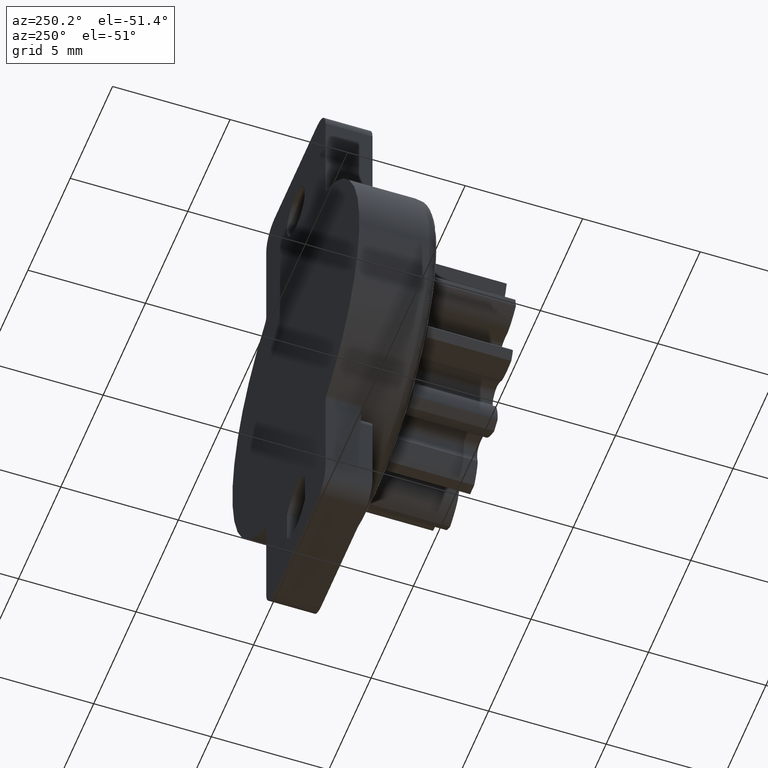
[diagram: clean part render]
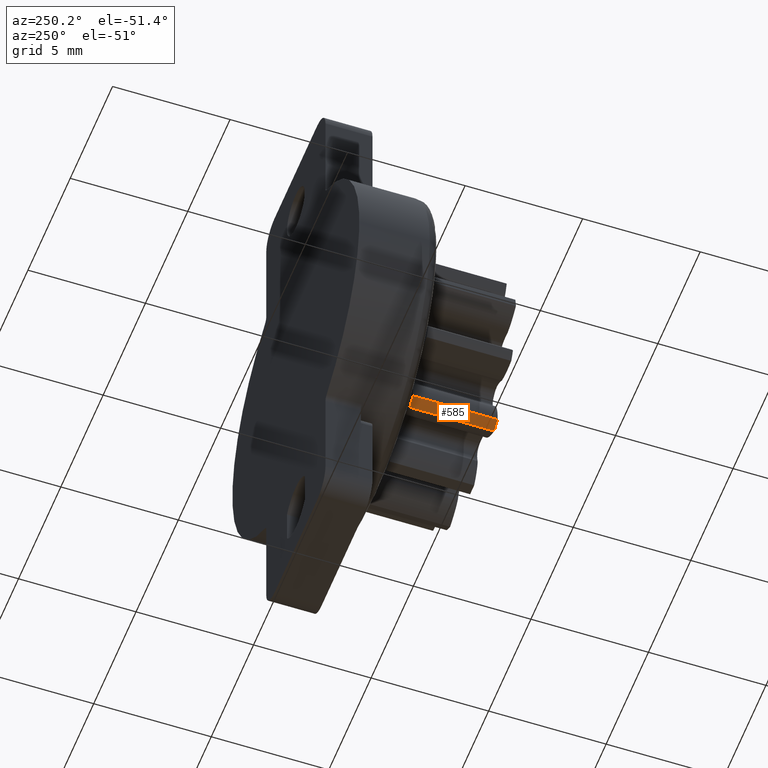
[diagram: same view with one face highlighted and labeled with its STEP entity id]
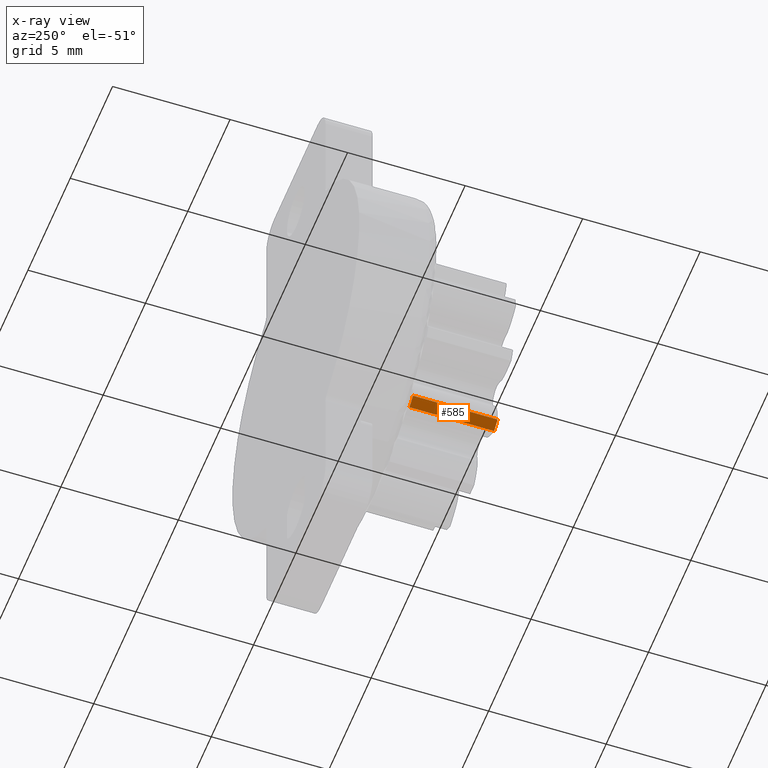
[diagram: x-ray of the same camera — body ghosted, the highlighted face saturated]
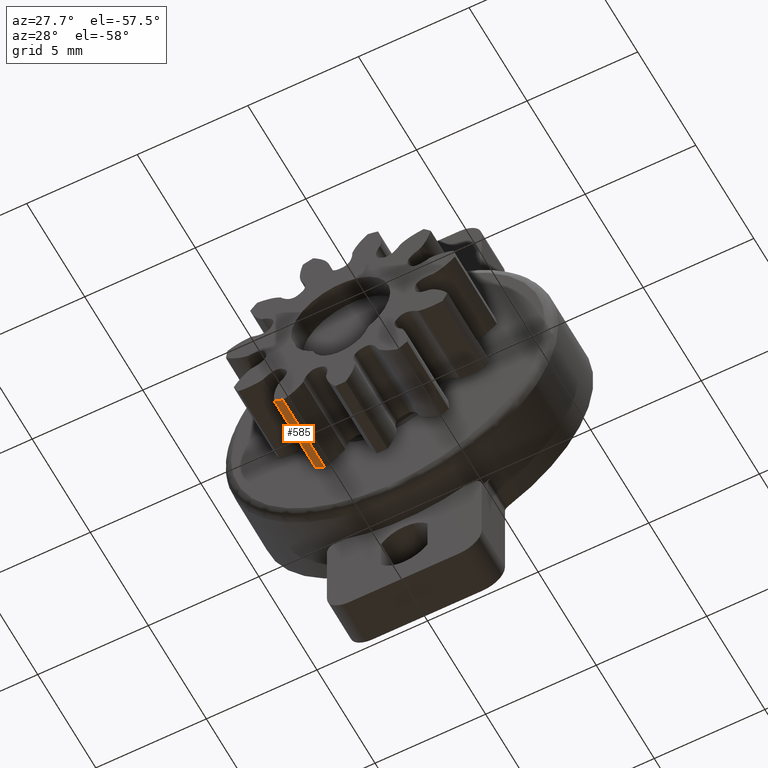
[diagram: same view with one face highlighted and labeled with its STEP entity id]
A machine part, auxiliary view. The second image highlights one B-rep face of the part: STEP entity #585.
The next image is the same camera in x-ray: the body ghosted, the highlighted face saturated — about 0% of this face is hidden behind the body in this view.
A second angle (auxiliary view) of the same face is appended — the face is thin or edge-on in the first view.
In plain terms, the highlighted cylindrical surface (partial cylindrical patch) has radius 5.2 mm, axis along (-0, -1, -0).
Its self-contained STEP definition (entity closure, byte-faithful):
#585=ADVANCED_FACE('',(#6141),#6140,.T.);
#6140=CYLINDRICAL_SURFACE('',#9866,5.20000049591E+00);
#6141=FACE_OUTER_BOUND('',#9867,.T.);
#9863=CARTESIAN_POINT('',(0.00000000000E+00,-1.00390000000E+03,0.00000000000E+00));
#9864=DIRECTION('',(-0.00000000000E+00,-1.00000000000E+00,-0.00000000000E+00));
#9865=DIRECTION('',(-0.00000000000E+00,0.00000000000E+00,-1.00000000000E+00));
#9866=AXIS2_PLACEMENT_3D('',#9863,#9864,#9865);
#9867=EDGE_LOOP('',(#12688,#12689,#12690,#12691));
#12688=ORIENTED_EDGE('',*,*,#15916,.T.);
#12689=ORIENTED_EDGE('',*,*,#15915,.F.);
#12690=ORIENTED_EDGE('',*,*,#15917,.F.);
#12691=ORIENTED_EDGE('',*,*,#15918,.T.);
#15915=EDGE_CURVE('',#27123,#27116,#27130,.T.);
#15916=EDGE_CURVE('',#27136,#27116,#27137,.T.);
#15917=EDGE_CURVE('',#27143,#27123,#27144,.T.);
#15918=EDGE_CURVE('',#27143,#27136,#27150,.T.);
#27116=VERTEX_POINT('',#35045);
#27123=VERTEX_POINT('',#35049);
#27130=LINE('',#35053,#35054);
#27136=VERTEX_POINT('',#35056);
#27137=CIRCLE('',#35060,5.20000049591E+00);
#27143=VERTEX_POINT('',#35061);
#27144=CIRCLE('',#35065,5.20000049591E+00);
#27150=LINE('',#35066,#35067);
#35045=CARTESIAN_POINT('',(-2.60458516957E+00,-3.90000000000E+00,-4.50068230960E+00));
#35049=CARTESIAN_POINT('',(-2.60458516957E+00,-7.50000000000E+00,-4.50068230960E+00));
#35053=CARTESIAN_POINT('',(-2.60458516957E+00,-7.50000000000E+00,-4.50068230960E+00));
#35054=VECTOR('',#35055,3.60000000000E+00);
#35055=DIRECTION('',(0.00000000000E+00,1.00000000000E+00,0.00000000000E+00));
#35056=CARTESIAN_POINT('',(-3.01198120000E+00,-3.90000000000E+00,-4.23886420000E+00));
#35057=CARTESIAN_POINT('',(0.00000000000E+00,-3.90000000000E+00,0.00000000000E+00));
#35058=DIRECTION('',(0.00000000000E+00,-1.00000000000E+00,0.00000000000E+00));
#35059=DIRECTION('',(-0.00000000000E+00,-0.00000000000E+00,1.00000000000E+00));
#35060=AXIS2_PLACEMENT_3D('',#35057,#35058,#35059);
#35061=CARTESIAN_POINT('',(-3.01198120000E+00,-7.50000000000E+00,-4.23886420000E+00));
#35062=CARTESIAN_POINT('',(0.00000000000E+00,-7.50000000000E+00,0.00000000000E+00));
#35063=DIRECTION('',(0.00000000000E+00,-1.00000000000E+00,0.00000000000E+00));
#35064=DIRECTION('',(-0.00000000000E+00,-0.00000000000E+00,1.00000000000E+00));
#35065=AXIS2_PLACEMENT_3D('',#35062,#35063,#35064);
#35066=CARTESIAN_POINT('',(-3.01198120000E+00,-7.50000000000E+00,-4.23886420000E+00));
#35067=VECTOR('',#35068,3.60000000000E+00);
#35068=DIRECTION('',(0.00000000000E+00,1.00000000000E+00,0.00000000000E+00));